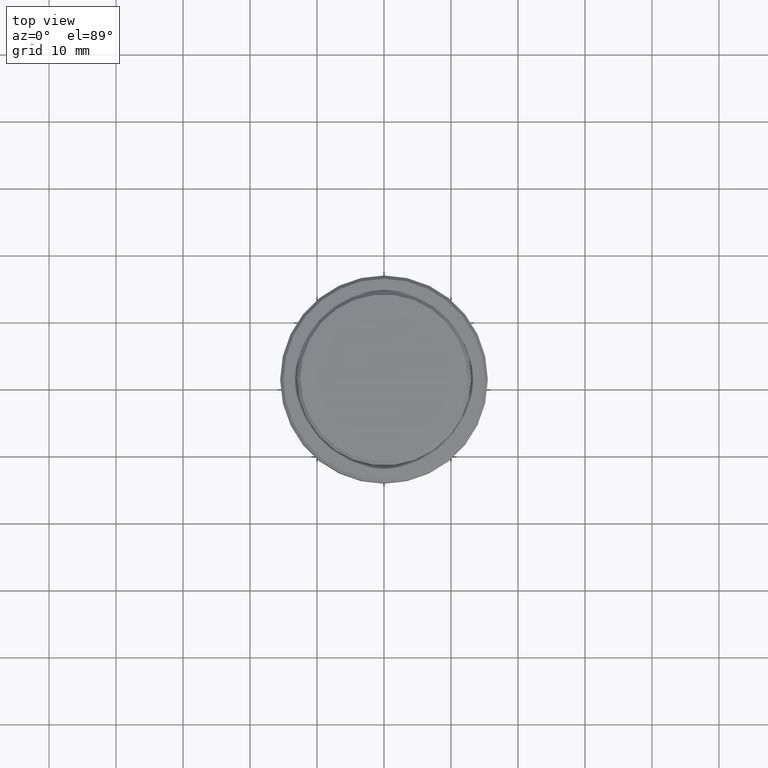
[diagram: clean part render]
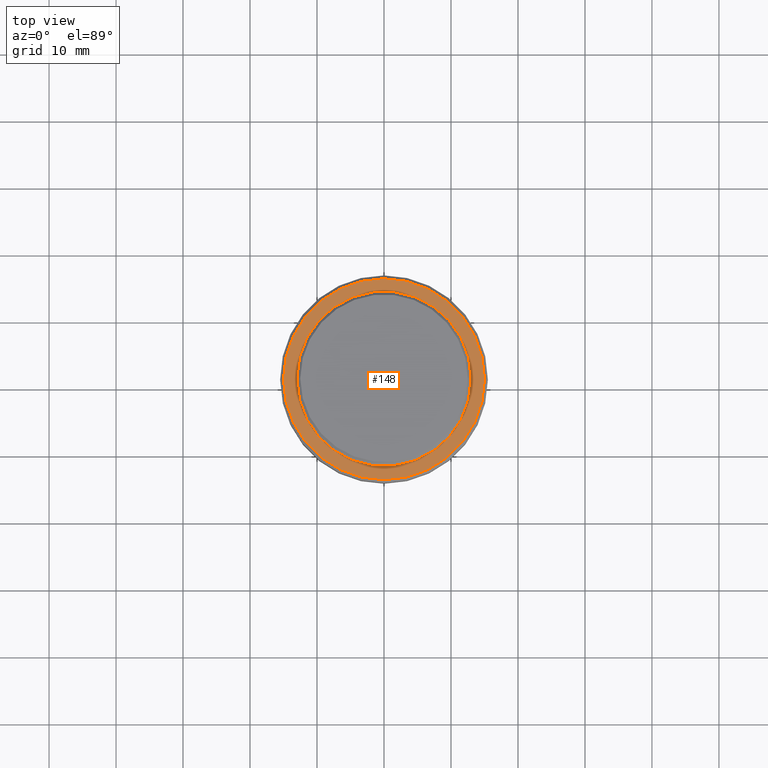
[diagram: same view with one face highlighted and labeled with its STEP entity id]
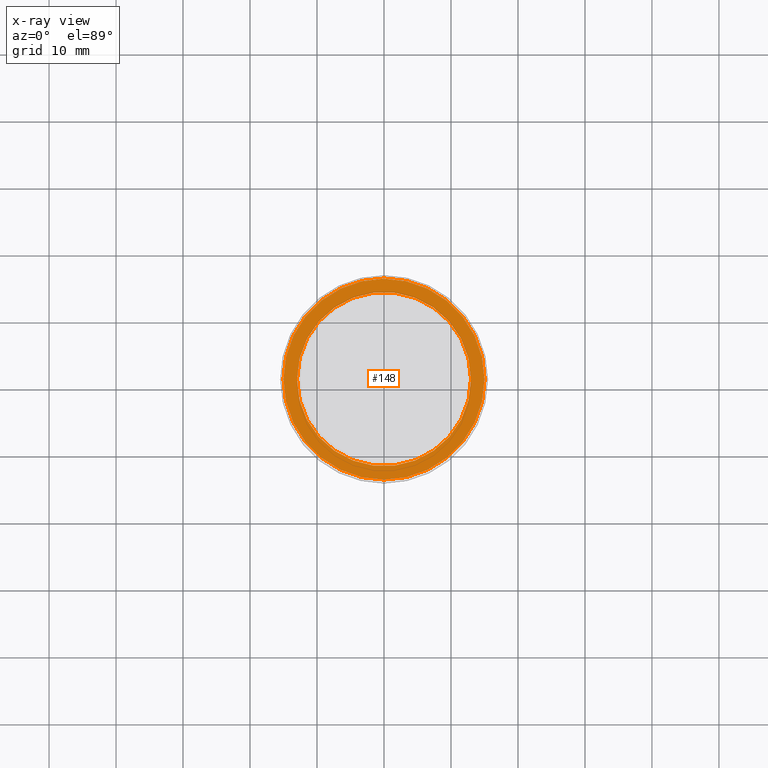
[diagram: x-ray of the same camera — body ghosted, the highlighted face saturated]
A machine part, top view. The second image highlights one B-rep face of the part: STEP entity #148.
The next image is the same camera in x-ray: the body ghosted, the highlighted face saturated — about 0% of this face is hidden behind the body in this view.
In plain terms, the highlighted planar face has unit normal (0, -0, 1).
Its self-contained STEP definition (entity closure, byte-faithful):
#55 = FACE_OUTER_BOUND ( 'NONE', #652, .T. ) ;
#146 = ORIENTED_EDGE ( 'NONE', *, *, #295, .T. ) ;
#148 = ADVANCED_FACE ( 'NONE', ( #55, #1339 ), #795, .T. ) ;
#198 = AXIS2_PLACEMENT_3D ( 'NONE', #607, #414, #1374 ) ;
#248 = EDGE_CURVE ( 'NONE', #797, #971, #1383, .T. ) ;
#276 = EDGE_CURVE ( 'NONE', #831, #959, #902, .T. ) ;
#295 = EDGE_CURVE ( 'NONE', #971, #797, #1065, .T. ) ;
#303 = CARTESIAN_POINT ( 'NONE',  ( 0.000000000000000000, 0.000000000000000000, -9.000000000000000000 ) ) ;
#364 = EDGE_LOOP ( 'NONE', ( #401, #857 ) ) ;
#401 = ORIENTED_EDGE ( 'NONE', *, *, #276, .T. ) ;
#414 = DIRECTION ( 'NONE',  ( -0.000000000000000000, -0.000000000000000000, 1.000000000000000000 ) ) ;
#448 = ORIENTED_EDGE ( 'NONE', *, *, #248, .T. ) ;
#562 = AXIS2_PLACEMENT_3D ( 'NONE', #303, #731, #1163 ) ;
#572 = CARTESIAN_POINT ( 'NONE',  ( 0.000000000000000000, 12.49999999999999289, -9.000000000000000000 ) ) ;
#583 = AXIS2_PLACEMENT_3D ( 'NONE', #819, #1279, #622 ) ;
#607 = CARTESIAN_POINT ( 'NONE',  ( 0.000000000000000000, 0.000000000000000000, -9.000000000000000000 ) ) ;
#622 = DIRECTION ( 'NONE',  ( 1.000000000000000000, 0.000000000000000000, 0.000000000000000000 ) ) ;
#652 = EDGE_LOOP ( 'NONE', ( #448, #146 ) ) ;
#697 = EDGE_CURVE ( 'NONE', #959, #831, #1066, .T. ) ;
#731 = DIRECTION ( 'NONE',  ( -0.000000000000000000, -0.000000000000000000, 1.000000000000000000 ) ) ;
#795 = PLANE ( 'NONE',  #1175 ) ;
#797 = VERTEX_POINT ( 'NONE', #1352 ) ;
#799 = DIRECTION ( 'NONE',  ( 0.000000000000000000, -0.000000000000000000, 1.000000000000000000 ) ) ;
#810 = AXIS2_PLACEMENT_3D ( 'NONE', #1251, #1143, #918 ) ;
#819 = CARTESIAN_POINT ( 'NONE',  ( 0.000000000000000000, 0.000000000000000000, -9.000000000000000000 ) ) ;
#831 = VERTEX_POINT ( 'NONE', #1290 ) ;
#857 = ORIENTED_EDGE ( 'NONE', *, *, #697, .T. ) ;
#902 = CIRCLE ( 'NONE', #583, 12.99999999999999467 ) ;
#918 = DIRECTION ( 'NONE',  ( 1.000000000000000000, 0.000000000000000000, 0.000000000000000000 ) ) ;
#956 = CARTESIAN_POINT ( 'NONE',  ( 15.00000000000000000, 1.867586368699713376E-15, -9.000000000000000000 ) ) ;
#959 = VERTEX_POINT ( 'NONE', #1170 ) ;
#971 = VERTEX_POINT ( 'NONE', #956 ) ;
#1065 = CIRCLE ( 'NONE', #562, 15.00000000000000000 ) ;
#1066 = CIRCLE ( 'NONE', #810, 12.99999999999999467 ) ;
#1118 = DIRECTION ( 'NONE',  ( 1.000000000000000000, 0.000000000000000000, 0.000000000000000000 ) ) ;
#1143 = DIRECTION ( 'NONE',  ( 0.000000000000000000, 0.000000000000000000, -1.000000000000000000 ) ) ;
#1163 = DIRECTION ( 'NONE',  ( 1.000000000000000000, 0.000000000000000000, 0.000000000000000000 ) ) ;
#1170 = CARTESIAN_POINT ( 'NONE',  ( -12.99999999999999467, 1.592040838891558504E-15, -9.000000000000000000 ) ) ;
#1175 = AXIS2_PLACEMENT_3D ( 'NONE', #572, #799, #1118 ) ;
#1251 = CARTESIAN_POINT ( 'NONE',  ( 0.000000000000000000, 0.000000000000000000, -9.000000000000000000 ) ) ;
#1279 = DIRECTION ( 'NONE',  ( 0.000000000000000000, 0.000000000000000000, -1.000000000000000000 ) ) ;
#1290 = CARTESIAN_POINT ( 'NONE',  ( 12.99999999999999467, 0.000000000000000000, -9.000000000000000000 ) ) ;
#1339 = FACE_BOUND ( 'NONE', #364, .T. ) ;
#1352 = CARTESIAN_POINT ( 'NONE',  ( -15.00000000000000000, 0.000000000000000000, -9.000000000000000000 ) ) ;
#1374 = DIRECTION ( 'NONE',  ( 1.000000000000000000, 0.000000000000000000, 0.000000000000000000 ) ) ;
#1383 = CIRCLE ( 'NONE', #198, 15.00000000000000000 ) ;